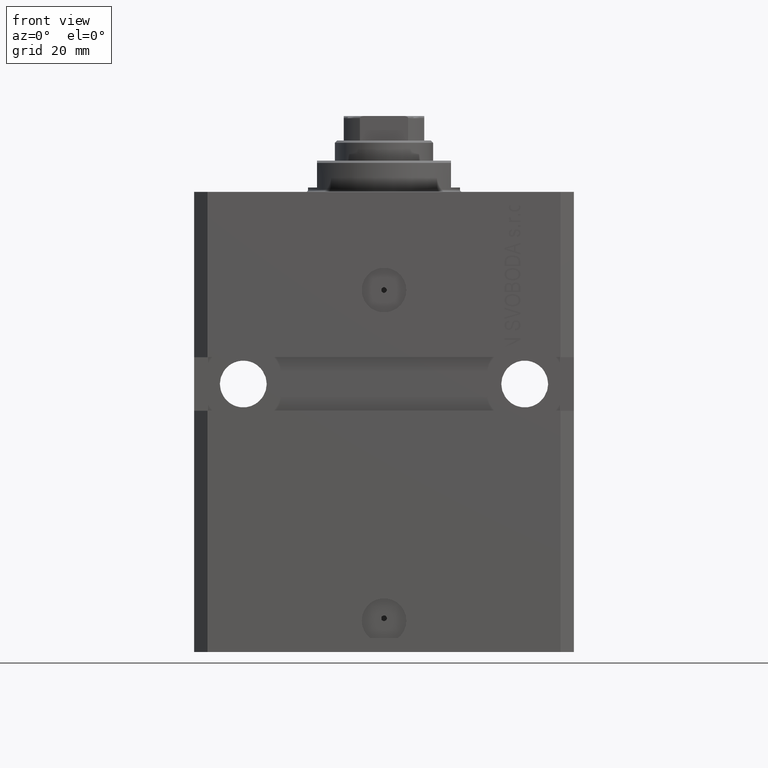
[diagram: clean part render]
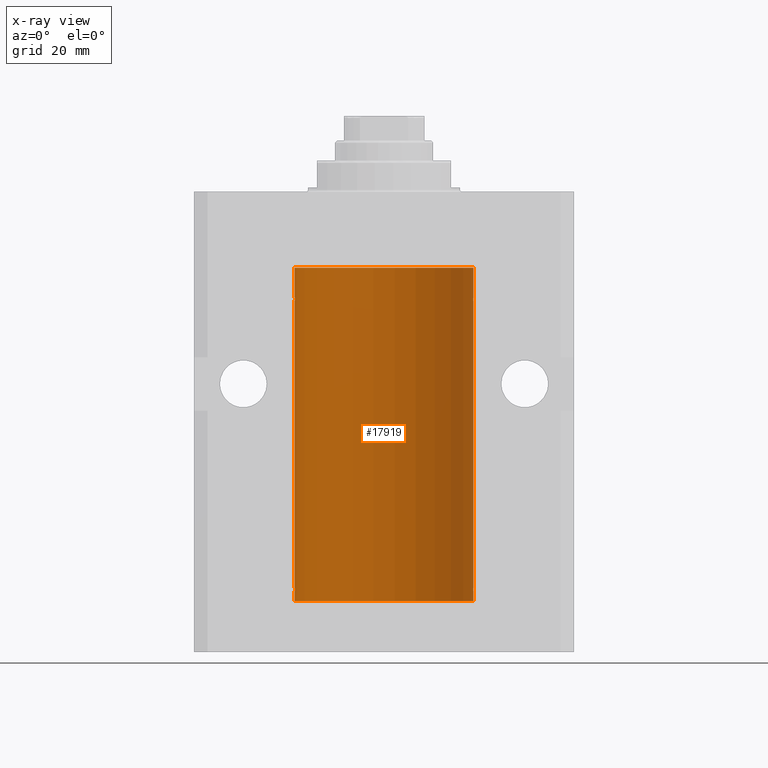
[diagram: x-ray — body ghosted, one internal face saturated and labeled with its STEP entity id]
A machine part, front view, then the same camera in x-ray: the body is ghosted and one INTERNAL B-rep face — a face not visible from any outside direction — is saturated and labeled: STEP entity #17919.
In plain terms, the highlighted cylindrical surface (partial cylindrical patch) has radius 20 mm, axis along (0, 0, 1).
Its self-contained STEP definition (entity closure, byte-faithful):
#325 = VECTOR ( 'NONE', #39673, 1000.000000000000000 ) ;
#898 = ORIENTED_EDGE ( 'NONE', *, *, #44012, .F. ) ;
#1795 = CARTESIAN_POINT ( 'NONE',  ( -19.99638934703457238, 0.3843678041337640350, -88.50046362978099523 ) ) ;
#1864 = ORIENTED_EDGE ( 'NONE', *, *, #11984, .T. ) ;
#2292 = CARTESIAN_POINT ( 'NONE',  ( 19.99023198964909298, 0.6250000000081574747, -88.99999999999910472 ) ) ;
#2387 = EDGE_CURVE ( 'NONE', #4319, #24755, #9682, .T. ) ;
#3008 = CARTESIAN_POINT ( 'NONE',  ( 19.99256353007439913, 0.5574106582031174151, -89.32639035180115172 ) ) ;
#3068 = CARTESIAN_POINT ( 'NONE',  ( 19.99023198964909298, 0.6250000000081574747, -88.99999999999910472 ) ) ;
#3315 = DIRECTION ( 'NONE',  ( 1.000000000000000000, 0.000000000000000000, 0.000000000000000000 ) ) ;
#3327 = VERTEX_POINT ( 'NONE', #14337 ) ;
#3410 = VERTEX_POINT ( 'NONE', #31030 ) ;
#4035 = CIRCLE ( 'NONE', #32809, 20.00000000000000000 ) ;
#4319 = VERTEX_POINT ( 'NONE', #47615 ) ;
#4401 = B_SPLINE_CURVE_WITH_KNOTS ( 'NONE', 3,
 ( #13064, #39815, #5772, #20614, #46158, #35443, #31790, #24001 ),
 .UNSPECIFIED., .F., .F.,
 ( 4, 2, 2, 4 ),
 ( 3.558729249985022577E-18, 0.0002443247335684094949, 0.0004886494671368154120, 0.0009772989342736271377 ),
 .UNSPECIFIED. ) ;
#4447 = CARTESIAN_POINT ( 'NONE',  ( 20.00000000000010303, 3.555666352936568165E-13, -88.37499999999666045 ) ) ;
#5388 = CARTESIAN_POINT ( 'NONE',  ( -19.99023018003212471, 0.6250578794725500931, -24.16284809704970371 ) ) ;
#5695 = CARTESIAN_POINT ( 'NONE',  ( -19.99999999999999645, 0.1631688615953344190, -89.62499999999981526 ) ) ;
#5772 = CARTESIAN_POINT ( 'NONE',  ( 19.99947351343144675, 0.1636818329565332686, -24.60872855715644292 ) ) ;
#5946 = CARTESIAN_POINT ( 'NONE',  ( 20.00000000000000000, -4.058908006348821872E-15, -89.62500000000000000 ) ) ;
#6075 = ORIENTED_EDGE ( 'NONE', *, *, #35944, .T. ) ;
#6420 = CARTESIAN_POINT ( 'NONE',  ( -20.00000000000000000, 2.449293598294706513E-15, -91.59999999999999432 ) ) ;
#6695 = VERTEX_POINT ( 'NONE', #33600 ) ;
#7334 = B_SPLINE_CURVE_WITH_KNOTS ( 'NONE', 3,
 ( #43570, #36032, #38715, #43337, #17556, #28730, #28008, #5388, #35310, #46513, #13174, #39441 ),
 .UNSPECIFIED., .F., .F.,
 ( 4, 2, 2, 2, 2, 4 ),
 ( 5.848927291235706941E-19, 0.0002442693137305304075, 0.0004885386274610601645, 0.0009770772549221123059, 0.001465615882383164339, 0.001954154509844215938 ),
 .UNSPECIFIED. ) ;
#7381 = VERTEX_POINT ( 'NONE', #37614 ) ;
#7629 = VERTEX_POINT ( 'NONE', #44567 ) ;
#7716 = DIRECTION ( 'NONE',  ( -0.000000000000000000, -0.000000000000000000, 1.000000000000000000 ) ) ;
#7771 = EDGE_CURVE ( 'NONE', #7629, #30550, #7334, .T. ) ;
#8555 = DIRECTION ( 'NONE',  ( 1.000000000000000000, 0.000000000000000000, 0.000000000000000000 ) ) ;
#9264 = DIRECTION ( 'NONE',  ( 0.000000000000000000, 0.000000000000000000, 1.000000000000000000 ) ) ;
#9346 = CARTESIAN_POINT ( 'NONE',  ( -19.99253506710754991, 0.5587120480776796017, -89.32511620830248944 ) ) ;
#9682 = LINE ( 'NONE', #13570, #37409 ) ;
#9834 = CARTESIAN_POINT ( 'NONE',  ( -20.00000000000000000, 2.449293598294706513E-15, -91.59999999999999432 ) ) ;
#10829 = CARTESIAN_POINT ( 'NONE',  ( -20.00000000000010303, 3.580159290815452135E-13, -89.62500000000332534 ) ) ;
#10857 = CARTESIAN_POINT ( 'NONE',  ( 0.000000000000000000, 0.000000000000000000, -91.59999999999999432 ) ) ;
#11984 = EDGE_CURVE ( 'NONE', #46960, #41313, #22130, .T. ) ;
#12333 = CARTESIAN_POINT ( 'NONE',  ( 0.000000000000000000, 0.000000000000000000, -17.00000000000000000 ) ) ;
#12513 = DIRECTION ( 'NONE',  ( -0.000000000000000000, -0.000000000000000000, 1.000000000000000000 ) ) ;
#12670 = CARTESIAN_POINT ( 'NONE',  ( 19.99769474220010679, 0.3253030616682399123, -23.44140633897632142 ) ) ;
#12992 = CARTESIAN_POINT ( 'NONE',  ( -19.99023018003212115, 0.6250578794725508702, -89.16284809704968950 ) ) ;
#13064 = CARTESIAN_POINT ( 'NONE',  ( 20.00000000000000000, 2.480610556832390753E-15, -24.62500000000000000 ) ) ;
#13174 = CARTESIAN_POINT ( 'NONE',  ( -20.00000000000000000, 0.1631688615953320320, -24.62499999999985434 ) ) ;
#13452 = ORIENTED_EDGE ( 'NONE', *, *, #35672, .F. ) ;
#13570 = CARTESIAN_POINT ( 'NONE',  ( 20.00000000000000000, 0.000000000000000000, -91.59999999999999432 ) ) ;
#13749 = VERTEX_POINT ( 'NONE', #10829 ) ;
#14337 = CARTESIAN_POINT ( 'NONE',  ( 20.00000000000000000, 0.000000000000000000, -17.00000000000000000 ) ) ;
#15407 = CARTESIAN_POINT ( 'NONE',  ( 20.00000000000000000, 0.000000000000000000, -91.59999999999999432 ) ) ;
#15816 = ORIENTED_EDGE ( 'NONE', *, *, #24465, .F. ) ;
#15893 = CARTESIAN_POINT ( 'NONE',  ( 19.99769474220011034, 0.3253030616682413001, -88.44140633897629300 ) ) ;
#16324 = CARTESIAN_POINT ( 'NONE',  ( 19.99999999999999645, 0.1631318418333146114, -23.37500000000016698 ) ) ;
#16330 = ORIENTED_EDGE ( 'NONE', *, *, #40629, .T. ) ;
#16491 = ORIENTED_EDGE ( 'NONE', *, *, #43957, .T. ) ;
#16561 = CARTESIAN_POINT ( 'NONE',  ( 20.00000000000010303, 3.555666340528858977E-13, -23.37499999999667111 ) ) ;
#17103 = ORIENTED_EDGE ( 'NONE', *, *, #7771, .T. ) ;
#17556 = CARTESIAN_POINT ( 'NONE',  ( -19.99638934703457593, 0.3843678041337688644, -23.50046362978100944 ) ) ;
#17859 = CARTESIAN_POINT ( 'NONE',  ( 19.99023198964934522, 0.6250000000002758904, -89.16311014829329906 ) ) ;
#17919 = ADVANCED_FACE ( 'NONE', ( #33231 ), #29346, .F. ) ;
#17939 = ORIENTED_EDGE ( 'NONE', *, *, #32998, .T. ) ;
#18083 = DIRECTION ( 'NONE',  ( -0.000000000000000000, -0.000000000000000000, 1.000000000000000000 ) ) ;
#19247 = CARTESIAN_POINT ( 'NONE',  ( 19.99023198964935588, 0.6249999999995746736, -23.83696384779806721 ) ) ;
#19959 = EDGE_LOOP ( 'NONE', ( #13452, #15816, #16330, #23041, #21930, #31385, #6075, #1864, #17939, #44072, #898, #17103, #26685, #16491 ) ) ;
#20541 = CARTESIAN_POINT ( 'NONE',  ( -20.00000000000010303, 3.580159290815452135E-13, -89.62500000000332534 ) ) ;
#20614 = CARTESIAN_POINT ( 'NONE',  ( 19.99766100389832957, 0.3150982863324739425, -24.54594438241279164 ) ) ;
#20786 = CARTESIAN_POINT ( 'NONE',  ( 19.99638788807193279, 0.3844440352705360553, -89.49948058986483090 ) ) ;
#20952 = LINE ( 'NONE', #42837, #325 ) ;
#21024 = CARTESIAN_POINT ( 'NONE',  ( -19.99999999999999289, 0.08259581631026000070, -88.37500000000000000 ) ) ;
#21026 = CARTESIAN_POINT ( 'NONE',  ( 19.99766100389833312, 0.3150982863324784944, -89.54594438241279875 ) ) ;
#21242 = EDGE_CURVE ( 'NONE', #3327, #6695, #36558, .T. ) ;
#21349 = DIRECTION ( 'NONE',  ( -0.000000000000000000, -0.000000000000000000, 1.000000000000000000 ) ) ;
#21930 = ORIENTED_EDGE ( 'NONE', *, *, #23191, .T. ) ;
#22130 = B_SPLINE_CURVE_WITH_KNOTS ( 'NONE', 3,
 ( #45763, #19247, #30920, #12670, #16324, #16561 ),
 .UNSPECIFIED., .F., .F.,
 ( 4, 2, 4 ),
 ( 0.0009772989342736271377, 0.001465726722058853775, 0.001954154509844080196 ),
 .UNSPECIFIED. ) ;
#23041 = ORIENTED_EDGE ( 'NONE', *, *, #34829, .T. ) ;
#23191 = EDGE_CURVE ( 'NONE', #39377, #4319, #36661, .T. ) ;
#23757 = CARTESIAN_POINT ( 'NONE',  ( 20.00000000000000355, 0.08261455565447828331, -89.62500000000001421 ) ) ;
#24001 = CARTESIAN_POINT ( 'NONE',  ( 19.99023198964909298, 0.6250000000081508134, -23.99999999999910472 ) ) ;
#24465 = EDGE_CURVE ( 'NONE', #40127, #7381, #4035, .T. ) ;
#24755 = VERTEX_POINT ( 'NONE', #47919 ) ;
#25210 = CARTESIAN_POINT ( 'NONE',  ( 19.99023198964909298, 0.6250000000081508134, -23.99999999999910472 ) ) ;
#25460 = VECTOR ( 'NONE', #18083, 1000.000000000000000 ) ;
#26029 = VERTEX_POINT ( 'NONE', #31064 ) ;
#26685 = ORIENTED_EDGE ( 'NONE', *, *, #37661, .F. ) ;
#26827 = LINE ( 'NONE', #15407, #44849 ) ;
#27163 = B_SPLINE_CURVE_WITH_KNOTS ( 'NONE', 3,
 ( #5946, #23757, #28310, #21026, #20786, #3008, #17859, #2292 ),
 .UNSPECIFIED., .F., .F.,
 ( 4, 2, 2, 4 ),
 ( 3.944467879762244826E-18, 0.0002443247335684158917, 0.0004886494671368277719, 0.0009772989342736221503 ),
 .UNSPECIFIED. ) ;
#27588 = CARTESIAN_POINT ( 'NONE',  ( -20.00000000000000000, -1.289767178852269867E-14, -88.37500000000000000 ) ) ;
#27749 = CARTESIAN_POINT ( 'NONE',  ( 0.000000000000000000, 0.000000000000000000, -91.59999999999999432 ) ) ;
#27828 = CARTESIAN_POINT ( 'NONE',  ( -19.99023380173166231, 0.6249420416828436187, -88.83670793056394643 ) ) ;
#28008 = CARTESIAN_POINT ( 'NONE',  ( -19.99023380173166231, 0.6249420416828462832, -23.83670793056396064 ) ) ;
#28215 = B_SPLINE_CURVE_WITH_KNOTS ( 'NONE', 3,
 ( #27588, #21024, #35125, #35855, #1795, #31481, #27828, #12992, #9346, #39009, #5695, #20541 ),
 .UNSPECIFIED., .F., .F.,
 ( 4, 2, 2, 2, 2, 4 ),
 ( 1.941973163207981414E-18, 0.0002442693137305403280, 0.0004885386274610787043, 0.0009770772549221259668, 0.001465615882383173229, 0.001954154509844220275 ),
 .UNSPECIFIED. ) ;
#28310 = CARTESIAN_POINT ( 'NONE',  ( 19.99947351343144319, 0.1636818329565372654, -89.60872855715643936 ) ) ;
#28730 = CARTESIAN_POINT ( 'NONE',  ( -19.99256581701871482, 0.5573276956902001311, -23.67348565770948809 ) ) ;
#29145 = CARTESIAN_POINT ( 'NONE',  ( -20.00000000000000000, 2.449293598294706513E-15, -91.59999999999999432 ) ) ;
#29346 = CYLINDRICAL_SURFACE ( 'NONE', #42679, 20.00000000000000000 ) ;
#29524 = DIRECTION ( 'NONE',  ( -0.000000000000000000, -0.000000000000000000, 1.000000000000000000 ) ) ;
#30550 = VERTEX_POINT ( 'NONE', #30700 ) ;
#30700 = CARTESIAN_POINT ( 'NONE',  ( -20.00000000000010303, 3.580159278407742946E-13, -24.62500000000332889 ) ) ;
#30920 = CARTESIAN_POINT ( 'NONE',  ( 19.99253733128256272, 0.5586305947778931191, -23.67476036735258305 ) ) ;
#31030 = CARTESIAN_POINT ( 'NONE',  ( -20.00000000000000000, -1.289767178852269867E-14, -88.37500000000000000 ) ) ;
#31061 = DIRECTION ( 'NONE',  ( 0.000000000000000000, 0.000000000000000000, 1.000000000000000000 ) ) ;
#31064 = CARTESIAN_POINT ( 'NONE',  ( 20.00000000000000000, -4.058908006348821872E-15, -89.62500000000000000 ) ) ;
#31299 = DIRECTION ( 'NONE',  ( 1.000000000000000000, 0.000000000000000000, 0.000000000000000000 ) ) ;
#31385 = ORIENTED_EDGE ( 'NONE', *, *, #2387, .T. ) ;
#31481 = CARTESIAN_POINT ( 'NONE',  ( -19.99256581701871838, 0.5573276956901981327, -88.67348565770946323 ) ) ;
#31790 = CARTESIAN_POINT ( 'NONE',  ( 19.99023198964933812, 0.6250000000002681189, -24.16311014829328130 ) ) ;
#32809 = AXIS2_PLACEMENT_3D ( 'NONE', #27749, #9264, #8555 ) ;
#32860 = CARTESIAN_POINT ( 'NONE',  ( 20.00000000000000000, 0.000000000000000000, -91.59999999999999432 ) ) ;
#32998 = EDGE_CURVE ( 'NONE', #41313, #3327, #20952, .T. ) ;
#33231 = FACE_OUTER_BOUND ( 'NONE', #19959, .T. ) ;
#33600 = CARTESIAN_POINT ( 'NONE',  ( -20.00000000000000000, 2.449293598294706513E-15, -17.00000000000000000 ) ) ;
#34125 = CARTESIAN_POINT ( 'NONE',  ( 19.99023198964936299, 0.6249999999995806688, -88.83696384779808852 ) ) ;
#34829 = EDGE_CURVE ( 'NONE', #26029, #39377, #27163, .T. ) ;
#35125 = CARTESIAN_POINT ( 'NONE',  ( -19.99947377218718358, 0.1636439183262787256, -88.39126364004653169 ) ) ;
#35310 = CARTESIAN_POINT ( 'NONE',  ( -19.99253506710754991, 0.5587120480776751608, -24.32511620830248589 ) ) ;
#35443 = CARTESIAN_POINT ( 'NONE',  ( 19.99256353007439202, 0.5574106582031160828, -24.32639035180114817 ) ) ;
#35672 = EDGE_CURVE ( 'NONE', #7381, #13749, #43986, .T. ) ;
#35855 = CARTESIAN_POINT ( 'NONE',  ( -19.99766197842594906, 0.3150331617867592748, -88.45402070102502989 ) ) ;
#35944 = EDGE_CURVE ( 'NONE', #24755, #46960, #4401, .T. ) ;
#36032 = CARTESIAN_POINT ( 'NONE',  ( -19.99999999999999645, 0.08259581631026780002, -23.37500000000000000 ) ) ;
#36097 = LINE ( 'NONE', #6420, #25460 ) ;
#36558 = CIRCLE ( 'NONE', #38118, 20.00000000000000000 ) ;
#36661 = B_SPLINE_CURVE_WITH_KNOTS ( 'NONE', 3,
 ( #42401, #34125, #41432, #15893, #41921, #4447 ),
 .UNSPECIFIED., .F., .F.,
 ( 4, 2, 4 ),
 ( 0.0009772989342736221503, 0.001465726722058849005, 0.001954154509844075859 ),
 .UNSPECIFIED. ) ;
#37409 = VECTOR ( 'NONE', #39357, 1000.000000000000000 ) ;
#37614 = CARTESIAN_POINT ( 'NONE',  ( -20.00000000000000000, 2.449293598294706513E-15, -91.59999999999999432 ) ) ;
#37661 = EDGE_CURVE ( 'NONE', #3410, #30550, #42432, .T. ) ;
#38118 = AXIS2_PLACEMENT_3D ( 'NONE', #12333, #31061, #31299 ) ;
#38715 = CARTESIAN_POINT ( 'NONE',  ( -19.99947377218718714, 0.1636439183262877461, -23.39126364004656011 ) ) ;
#39009 = CARTESIAN_POINT ( 'NONE',  ( -19.99769349528941476, 0.3253804398728739611, -89.55855820727681760 ) ) ;
#39357 = DIRECTION ( 'NONE',  ( -0.000000000000000000, -0.000000000000000000, 1.000000000000000000 ) ) ;
#39377 = VERTEX_POINT ( 'NONE', #3068 ) ;
#39441 = CARTESIAN_POINT ( 'NONE',  ( -20.00000000000010303, 3.580159278407742946E-13, -24.62500000000332889 ) ) ;
#39673 = DIRECTION ( 'NONE',  ( -0.000000000000000000, -0.000000000000000000, 1.000000000000000000 ) ) ;
#39815 = CARTESIAN_POINT ( 'NONE',  ( 19.99999999999999645, 0.08261455565447944904, -24.62499999999999289 ) ) ;
#40127 = VERTEX_POINT ( 'NONE', #32860 ) ;
#40629 = EDGE_CURVE ( 'NONE', #40127, #26029, #26827, .T. ) ;
#41313 = VERTEX_POINT ( 'NONE', #46910 ) ;
#41432 = CARTESIAN_POINT ( 'NONE',  ( 19.99253733128256627, 0.5586305947779004466, -88.67476036735259015 ) ) ;
#41921 = CARTESIAN_POINT ( 'NONE',  ( 19.99999999999999645, 0.1631318418333158327, -88.37500000000015632 ) ) ;
#42401 = CARTESIAN_POINT ( 'NONE',  ( 19.99023198964909298, 0.6250000000081574747, -88.99999999999910472 ) ) ;
#42432 = LINE ( 'NONE', #9834, #45588 ) ;
#42679 = AXIS2_PLACEMENT_3D ( 'NONE', #10857, #21349, #3315 ) ;
#42837 = CARTESIAN_POINT ( 'NONE',  ( 20.00000000000000000, 0.000000000000000000, -91.59999999999999432 ) ) ;
#43337 = CARTESIAN_POINT ( 'NONE',  ( -19.99766197842594906, 0.3150331617867667688, -23.45402070102505476 ) ) ;
#43570 = CARTESIAN_POINT ( 'NONE',  ( -20.00000000000000000, -2.867584836844214272E-15, -23.37500000000000000 ) ) ;
#43957 = EDGE_CURVE ( 'NONE', #3410, #13749, #28215, .T. ) ;
#43986 = LINE ( 'NONE', #29145, #47849 ) ;
#44012 = EDGE_CURVE ( 'NONE', #7629, #6695, #36097, .T. ) ;
#44072 = ORIENTED_EDGE ( 'NONE', *, *, #21242, .T. ) ;
#44567 = CARTESIAN_POINT ( 'NONE',  ( -20.00000000000000000, -2.867584836844214272E-15, -23.37500000000000000 ) ) ;
#44849 = VECTOR ( 'NONE', #29524, 1000.000000000000000 ) ;
#45588 = VECTOR ( 'NONE', #12513, 1000.000000000000000 ) ;
#45763 = CARTESIAN_POINT ( 'NONE',  ( 19.99023198964909298, 0.6250000000081508134, -23.99999999999910472 ) ) ;
#46158 = CARTESIAN_POINT ( 'NONE',  ( 19.99638788807192924, 0.3844440352705381647, -24.49948058986479893 ) ) ;
#46513 = CARTESIAN_POINT ( 'NONE',  ( -19.99769349528941120, 0.3253804398728645242, -24.55855820727680339 ) ) ;
#46910 = CARTESIAN_POINT ( 'NONE',  ( 20.00000000000010303, 3.555666340528858977E-13, -23.37499999999667111 ) ) ;
#46960 = VERTEX_POINT ( 'NONE', #25210 ) ;
#47615 = CARTESIAN_POINT ( 'NONE',  ( 20.00000000000010303, 3.555666352936568165E-13, -88.37499999999666045 ) ) ;
#47849 = VECTOR ( 'NONE', #7716, 1000.000000000000000 ) ;
#47919 = CARTESIAN_POINT ( 'NONE',  ( 20.00000000000000000, 2.480610556832390753E-15, -24.62500000000000000 ) ) ;